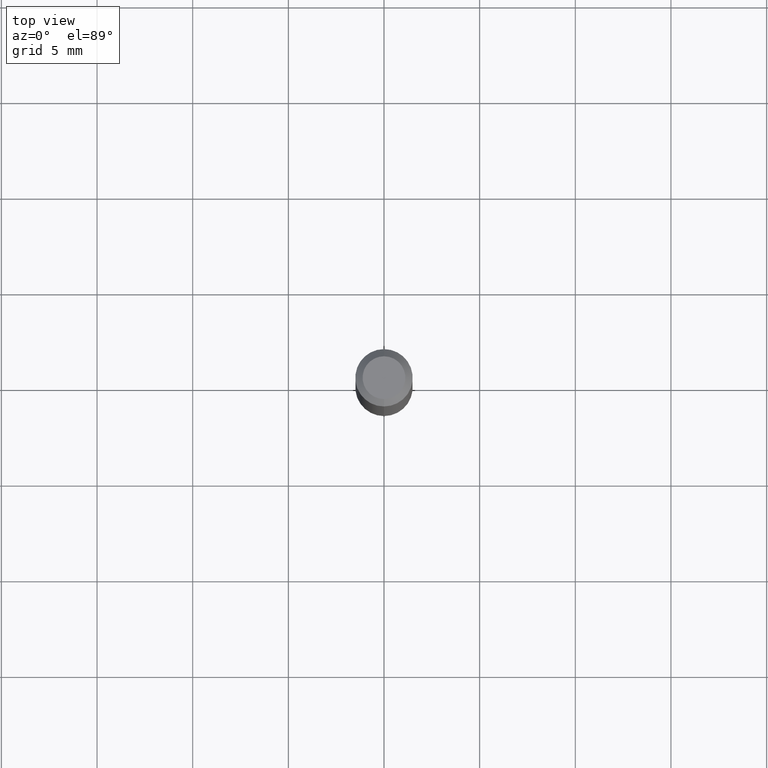
[diagram: clean part render]
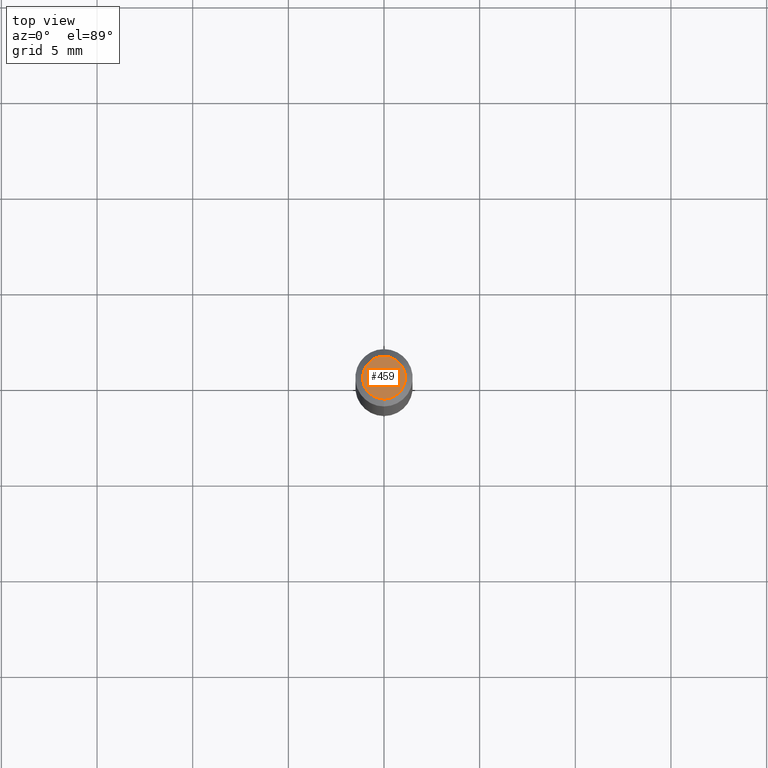
[diagram: same view with one face highlighted and labeled with its STEP entity id]
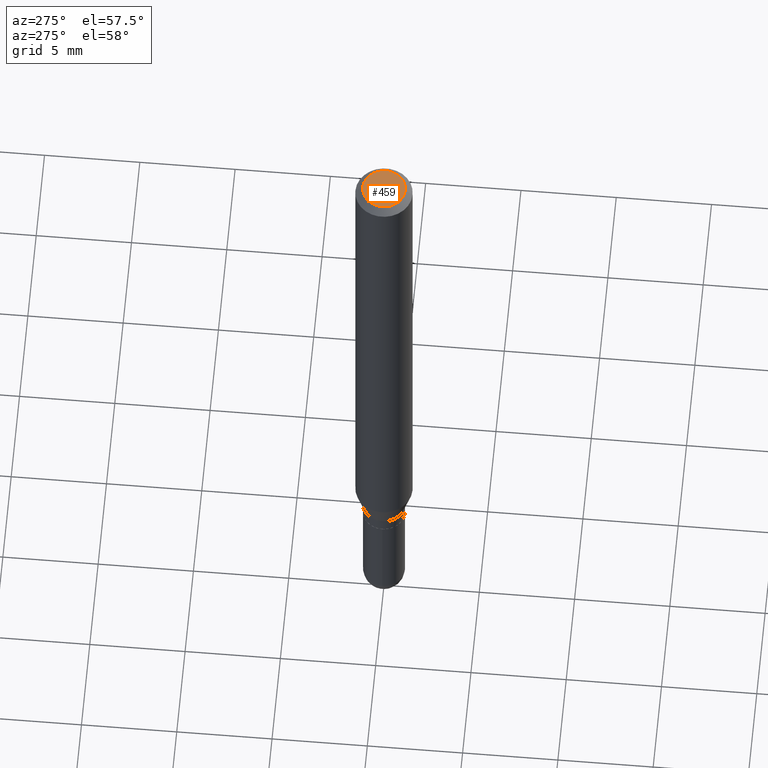
[diagram: same view with one face highlighted and labeled with its STEP entity id]
A machine part, top view. The second image highlights one B-rep face of the part: STEP entity #459.
A second angle (auxiliary view) of the same face is appended — the face is thin or edge-on in the first view.
In plain terms, the highlighted planar face has unit normal (0, -0, -1).
Its self-contained STEP definition (entity closure, byte-faithful):
#9 = PLANE ( 'NONE',  #84 ) ;
#52 = AXIS2_PLACEMENT_3D ( 'NONE', #504, #275, #445 ) ;
#60 = CARTESIAN_POINT ( 'NONE',  ( 5.835533334487501631E-46, -8.331558142108499258E-32, -2.386258382299361800E-17 ) ) ;
#84 = AXIS2_PLACEMENT_3D ( 'NONE', #500, #189, #87 ) ;
#87 = DIRECTION ( 'NONE',  ( 6.982962677686265922E-15, 1.000000000000000000, -3.491473598965565172E-15 ) ) ;
#92 = CARTESIAN_POINT ( 'NONE',  ( -3.536586717851222218E-16, -0.04404999999999999888, 1.299368282114394844E-16 ) ) ;
#126 = VERTEX_POINT ( 'NONE', #244 ) ;
#148 = DIRECTION ( 'NONE',  ( -2.445474210912764340E-29, 3.491473598965564778E-15, 1.000000000000000000 ) ) ;
#160 = EDGE_CURVE ( 'NONE', #282, #126, #285, .T. ) ;
#185 = ORIENTED_EDGE ( 'NONE', *, *, #327, .T. ) ;
#189 = DIRECTION ( 'NONE',  ( 2.445474210912763779E-29, -3.491473598965565172E-15, -1.000000000000000000 ) ) ;
#203 = CIRCLE ( 'NONE', #453, 0.04404999999999999888 ) ;
#235 = ORIENTED_EDGE ( 'NONE', *, *, #160, .T. ) ;
#244 = CARTESIAN_POINT ( 'NONE',  ( 3.599717260347271507E-16, 0.04404999999999999888, -1.776619958574267450E-16 ) ) ;
#275 = DIRECTION ( 'NONE',  ( -2.445474210912764340E-29, 3.491473598965564778E-15, 1.000000000000000000 ) ) ;
#282 = VERTEX_POINT ( 'NONE', #92 ) ;
#285 = CIRCLE ( 'NONE', #52, 0.04404999999999999888 ) ;
#327 = EDGE_CURVE ( 'NONE', #126, #282, #203, .T. ) ;
#359 = EDGE_LOOP ( 'NONE', ( #185, #235 ) ) ;
#430 = FACE_OUTER_BOUND ( 'NONE', #359, .T. ) ;
#445 = DIRECTION ( 'NONE',  ( -6.982962677686265133E-15, -1.000000000000000000, 3.491473598965564384E-15 ) ) ;
#453 = AXIS2_PLACEMENT_3D ( 'NONE', #60, #148, #488 ) ;
#459 = ADVANCED_FACE ( 'NONE', ( #430 ), #9, .F. ) ;
#488 = DIRECTION ( 'NONE',  ( -6.982962677686265133E-15, -1.000000000000000000, 3.491473598965564384E-15 ) ) ;
#500 = CARTESIAN_POINT ( 'NONE',  ( 3.075995059520799729E-16, 0.04404999999999999888, -1.657307039459299298E-16 ) ) ;
#504 = CARTESIAN_POINT ( 'NONE',  ( 5.835533334487501631E-46, -8.331558142108499258E-32, -2.386258382299361800E-17 ) ) ;